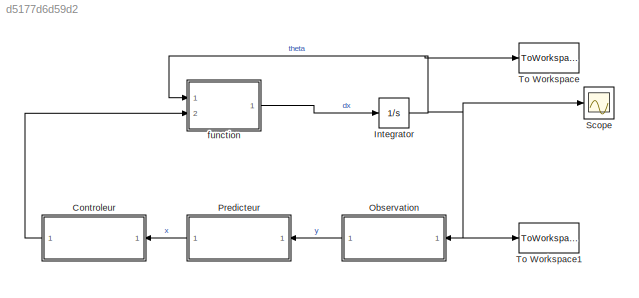
MODEL slx_d5177d6d59d2
KIND model
CONFIG AbsTol = auto
CONFIG EnableMultiTasking = off
CONFIG FixedStep = auto
CONFIG MaxStep = auto
CONFIG MinStep = auto
CONFIG RelTol = 1e-3
CONFIG SampleTimeConstraint = Unconstrained
CONFIG Solver = VariableStepAuto
CONFIG SolverName = VariableStepAuto
CONFIG StartTime = 0.0
CONFIG StopTime = 10.0
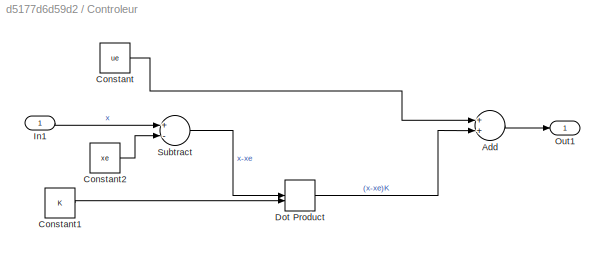
BLOCK [SubSystem] Controleur
  Ports = [1, 1]
  RequestExecContextInheritance = off
BLOCK [Sum] Controleur/Add
  InputSameDT = off
  OutDataTypeStr = Inherit: Inherit via internal rule
  Ports = [2, 1]
  SaturateOnIntegerOverflow = off
BLOCK [Constant] Controleur/Constant
  Value = ue
BLOCK [Constant] Controleur/Constant1
  Value = K
BLOCK [Constant] Controleur/Constant2
  Value = xe
BLOCK [DotProduct] Controleur/Dot Product
  OutDataTypeStr = Inherit: Inherit via internal rule
BLOCK [Inport] Controleur/In1
  IconDisplay = Port number
BLOCK [Outport] Controleur/Out1
  IconDisplay = Port number
BLOCK [Sum] Controleur/Subtract
  InputSameDT = off
  Inputs = +-
  OutDataTypeStr = Inherit: Inherit via internal rule
  Ports = [2, 1]
  SaturateOnIntegerOverflow = off
BLOCK [Integrator] Integrator
  InitialCondition = x0
  Ports = [1, 1]
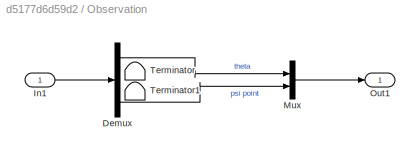
BLOCK [SubSystem] Observation
  Ports = [1, 1]
  RequestExecContextInheritance = off
BLOCK [Demux] Observation/Demux
  DisplayOption = bar
  Ports = [1, 4]
BLOCK [Inport] Observation/In1
  IconDisplay = Port number
BLOCK [Mux] Observation/Mux
  DisplayOption = bar
  Inputs = 2
  Ports = [2, 1]
BLOCK [Outport] Observation/Out1
  IconDisplay = Port number
BLOCK [Terminator] Observation/Terminator
BLOCK [Terminator] Observation/Terminator1
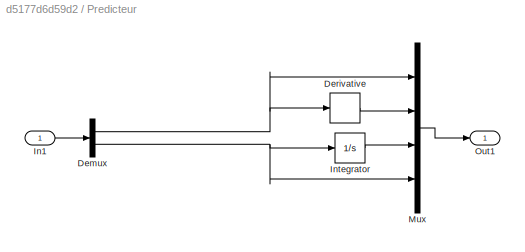
BLOCK [SubSystem] Predicteur
  Ports = [1, 1]
  RequestExecContextInheritance = off
BLOCK [Demux] Predicteur/Demux
  DisplayOption = bar
  Outputs = 2
  Ports = [1, 2]
BLOCK [Derivative] Predicteur/Derivative
BLOCK [Inport] Predicteur/In1
  IconDisplay = Port number
BLOCK [Integrator] Predicteur/Integrator
  Ports = [1, 1]
BLOCK [Mux] Predicteur/Mux
  DisplayOption = bar
  Ports = [4, 1]
BLOCK [Outport] Predicteur/Out1
  IconDisplay = Port number
BLOCK [Scope] Scope
  Floating = off
  NumInputPorts = 1
  Ports = [1]
  ScopeSpecificationString = Simulink.scopes.TimeScopeBlockCfg('CurrentConfiguration', extmgr.ConfigurationSet(extmgr.Configuration('Core','General UI',true),extmgr.Configuration('Core','Source UI',true),extmgr.Configuration('Sources','WiredSimulink',true),extmgr.Configuration('Visuals','Time Domain',true,'SerializedDisplays',{struct('MinYLimReal','-8952749915.26894','MaxYLimReal','80572658329.97005','YLabelReal','','MinYLimM...<+1445ch>
BLOCK [ToWorkspace] To Workspace
  FixptAsFi = on
  MaxDataPoints = inf
  Ports = [1]
  SampleTime = -1
  SaveFormat = Timeseries
  VariableName = X
BLOCK [ToWorkspace] To Workspace1
  FixptAsFi = on
  MaxDataPoints = inf
  Ports = [1]
  SampleTime = -1
  SaveFormat = Timeseries
  VariableName = U
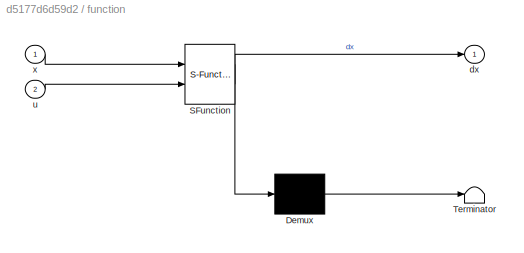
BLOCK [SubSystem] function
  ErrorFcn = Stateflow.Translate.translate
  PermitHierarchicalResolution = ExplicitOnly
  Ports = [2, 1]
  RequestExecContextInheritance = off
  SFBlockType = MATLAB Function
  TreatAsAtomicUnit = on
BLOCK [Demux] function/ Demux 
  Outputs = 1
  Ports = [1, 1]
BLOCK [S-Function] function/ SFunction 
  EnableBusSupport = on
  FunctionName = sf_sfun
  PortCounts = [2 2]
  Ports = [2, 2]
  SFcnIsStateOwnerBlock = off
  SFunctionDeploymentMode = off
  Tag = Stateflow S-Function robot_capteur_etu 2
BLOCK [Terminator] function/ Terminator 
BLOCK [Outport] function/dx
  IconDisplay = Port number
BLOCK [Inport] function/u
  IconDisplay = Port number
  Port = 2
BLOCK [Inport] function/x
  IconDisplay = Port number
LINE Controleur/Add:1 -> Controleur/Out1:1
LINE Controleur/Constant1:1 -> Controleur/Dot Product:2
LINE Controleur/Constant2:1 -> Controleur/Subtract:2
LINE Controleur/Constant:1 -> Controleur/Add:1
LINE Controleur/Dot Product:1 -> Controleur/Add:2
LINE Controleur/In1:1 -> Controleur/Subtract:1
LINE Controleur/Subtract:1 -> Controleur/Dot Product:1
LINE Controleur:1 -> function:2
NET Integrator:1 -> Observation:1, Scope:1, To Workspace1:1, To Workspace:1, function:1
LINE Observation/Demux:1 -> Observation/Mux:1
LINE Observation/Demux:4 -> Observation/Mux:2
LINE Observation/In1:1 -> Observation/Demux:1
LINE Observation/Mux:1 -> Observation/Out1:1
LINE Observation:1 -> Predicteur:1
NET Predicteur/Demux:1 -> Predicteur/Derivative:1, Predicteur/Mux:1
NET Predicteur/Demux:2 -> Predicteur/Integrator:1, Predicteur/Mux:4
LINE Predicteur/Derivative:1 -> Predicteur/Mux:2
LINE Predicteur/In1:1 -> Predicteur/Demux:1
LINE Predicteur/Integrator:1 -> Predicteur/Mux:3
LINE Predicteur/Mux:1 -> Predicteur/Out1:1
LINE Predicteur:1 -> Controleur:1
LINE function:1 -> Integrator:1
note: NET lines group one-source signal fan-out (src -> all destinations, sorted); 1:1 wires keep LINE
CHART function states=1 transitions=1
  STATE_LABEL 'eML_blk_kernel()'
  STATE_LABEL 'SCRIPT:\nfunction dx   = fcn( x, u)\n%   Dynamic equations of motion of the segway on an axis.\n%   Inputs: - x = [theta psi dtheta dpsi]\n%               theta: average angle of the wheels      [rad]\n%               psi: body pitch angle                   [rad]\n%               dtheta: average velocity of the wheels  [rad/s]\n%               dpsi: body pitch velocity               [rad/s]\n%          - ...<+1500ch>'
